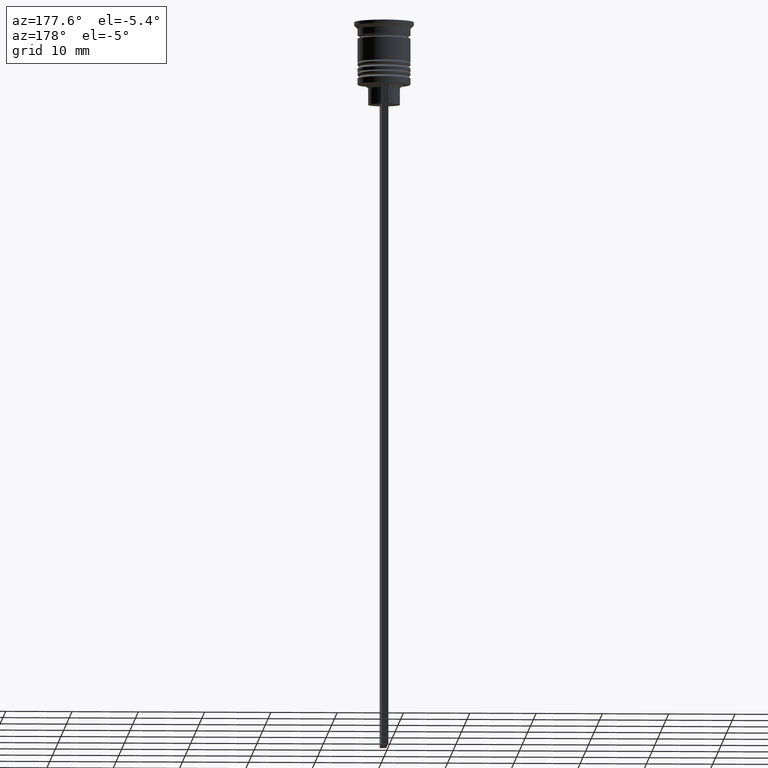
[diagram: clean part render]
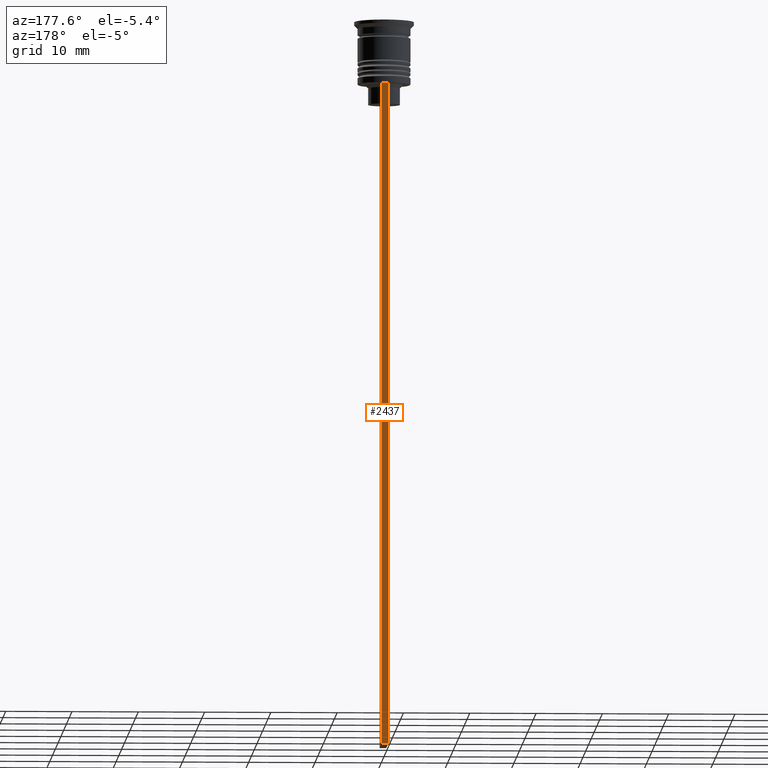
[diagram: same view with one face highlighted and labeled with its STEP entity id]
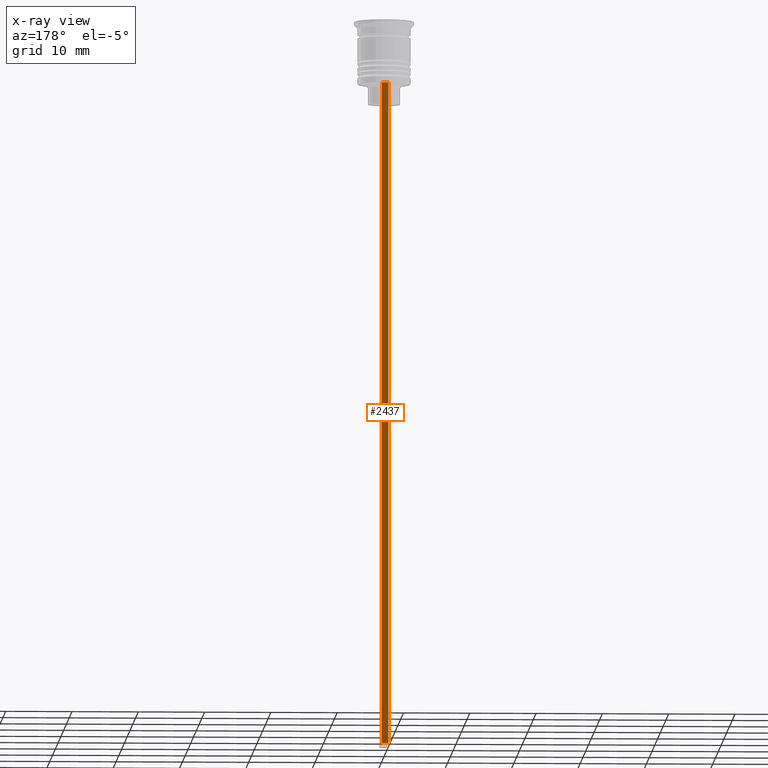
[diagram: x-ray of the same camera — body ghosted, the highlighted face saturated]
A machine part, auxiliary view. The second image highlights one B-rep face of the part: STEP entity #2437.
The next image is the same camera in x-ray: the body ghosted, the highlighted face saturated — about 0% of this face is hidden behind the body in this view.
In plain terms, the highlighted planar face has unit normal (0, -1, -0).
Its self-contained STEP definition (entity closure, byte-faithful):
#33 = VERTEX_POINT ( 'NONE', #1064 ) ;
#39 = VERTEX_POINT ( 'NONE', #1988 ) ;
#142 = LINE ( 'NONE', #407, #2507 ) ;
#315 = VECTOR ( 'NONE', #1324, 1000.000000000000000 ) ;
#329 = LINE ( 'NONE', #339, #1898 ) ;
#339 = CARTESIAN_POINT ( 'NONE',  ( -0.5000000000000000000, 4.000000000000000000, -1.437742251701450202 ) ) ;
#370 = DIRECTION ( 'NONE',  ( 1.000000000000000000, 0.000000000000000000, 0.000000000000000000 ) ) ;
#371 = LINE ( 'NONE', #2334, #315 ) ;
#407 = CARTESIAN_POINT ( 'NONE',  ( 0.5000000000000000000, 4.000000000000000000, -109.5000000000000000 ) ) ;
#410 = EDGE_LOOP ( 'NONE', ( #1168, #2034, #2238, #1983 ) ) ;
#529 = CARTESIAN_POINT ( 'NONE',  ( -0.5000000000000000000, 4.000000000000000000, -109.5000000000000000 ) ) ;
#561 = EDGE_CURVE ( 'NONE', #33, #1250, #2492, .T. ) ;
#626 = DIRECTION ( 'NONE',  ( 0.000000000000000000, -1.000000000000000000, -0.000000000000000000 ) ) ;
#773 = DIRECTION ( 'NONE',  ( -1.000000000000000000, 0.000000000000000000, 0.000000000000000000 ) ) ;
#921 = CARTESIAN_POINT ( 'NONE',  ( 0.5000000000000000000, 4.000000000000000000, -9.500000000000000000 ) ) ;
#951 = VECTOR ( 'NONE', #370, 1000.000000000000000 ) ;
#1064 = CARTESIAN_POINT ( 'NONE',  ( -0.5000000000000000000, 4.000000000000000000, -9.500000000000000000 ) ) ;
#1168 = ORIENTED_EDGE ( 'NONE', *, *, #1911, .F. ) ;
#1250 = VERTEX_POINT ( 'NONE', #921 ) ;
#1310 = FACE_OUTER_BOUND ( 'NONE', #410, .T. ) ;
#1324 = DIRECTION ( 'NONE',  ( 0.000000000000000000, 0.000000000000000000, -1.000000000000000000 ) ) ;
#1331 = CARTESIAN_POINT ( 'NONE',  ( 0.5000000000000000000, 4.000000000000000000, -1.437742251701450202 ) ) ;
#1531 = PLANE ( 'NONE',  #2232 ) ;
#1747 = EDGE_CURVE ( 'NONE', #39, #2207, #142, .T. ) ;
#1891 = DIRECTION ( 'NONE',  ( 0.000000000000000000, 0.000000000000000000, -1.000000000000000000 ) ) ;
#1898 = VECTOR ( 'NONE', #1891, 1000.000000000000000 ) ;
#1911 = EDGE_CURVE ( 'NONE', #33, #2207, #329, .T. ) ;
#1971 = DIRECTION ( 'NONE',  ( 0.000000000000000000, 0.000000000000000000, -1.000000000000000000 ) ) ;
#1983 = ORIENTED_EDGE ( 'NONE', *, *, #1747, .T. ) ;
#1988 = CARTESIAN_POINT ( 'NONE',  ( 0.5000000000000000000, 4.000000000000000000, -109.5000000000000000 ) ) ;
#2034 = ORIENTED_EDGE ( 'NONE', *, *, #561, .T. ) ;
#2102 = EDGE_CURVE ( 'NONE', #1250, #39, #371, .T. ) ;
#2207 = VERTEX_POINT ( 'NONE', #529 ) ;
#2232 = AXIS2_PLACEMENT_3D ( 'NONE', #1331, #626, #1971 ) ;
#2238 = ORIENTED_EDGE ( 'NONE', *, *, #2102, .T. ) ;
#2334 = CARTESIAN_POINT ( 'NONE',  ( 0.5000000000000000000, 4.000000000000000000, -1.437742251701450202 ) ) ;
#2437 = ADVANCED_FACE ( 'NONE', ( #1310 ), #1531, .F. ) ;
#2471 = CARTESIAN_POINT ( 'NONE',  ( 0.5000000000000000000, 4.000000000000000000, -9.500000000000000000 ) ) ;
#2492 = LINE ( 'NONE', #2471, #951 ) ;
#2507 = VECTOR ( 'NONE', #773, 1000.000000000000000 ) ;